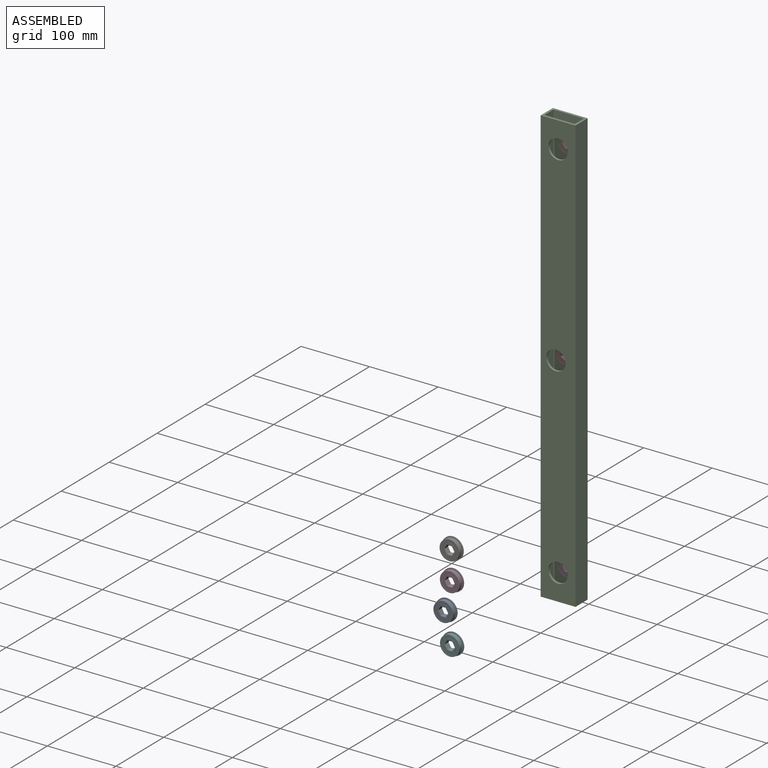
[diagram: assembled view]
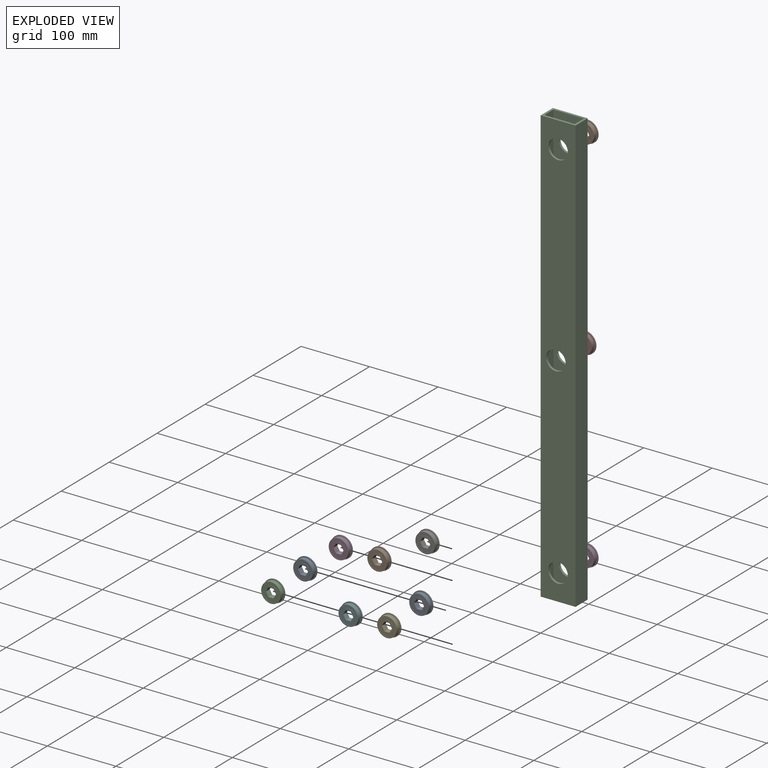
[diagram: exploded view]
GUIDED TOUR — MATED ASSEMBLY (Onshape document f9872a1371053027e5c98f9d, AutoMate assembly f9872a1371053027e5c98f9d_c135a51f051da96ee709e1ff_50b4e8c3d63217296f3e1347_default)

This assembly has 12 components, labeled P0..P11 below (a component is one placed occurrence of a part; the same part can appear more than once), held together by 6 mates. A mate is a constraint between two components; its type names the relative motion it leaves free:
  CYLINDRICAL — leaves both rotation about and translation along the listed axis free,
  PLANAR — leaves sliding in the plane through the listed point (normal = the listed direction) and rotation about that normal free.
Axis/direction vectors are unit vectors and 'through' points are millimeter coordinates, both in the assembly's world frame.

MATES
  1. PLANAR "Planar 3": P2 <-> P9, direction (0.000, 1.000, 0.000) through (-48.60, 124.48, 554.80) mm
  2. CYLINDRICAL "Cylindrical 3": P9 <-> P2, axis (0.000, -1.000, 0.000) through (-74.00, 118.13, 516.68) mm
  3. PLANAR "Planar 2": P2 <-> P3, direction (0.000, 1.000, 0.000) through (-73.93, 124.48, 237.30) mm
  4. PLANAR "Planar 1": P2 <-> P7, direction (0.000, 1.000, 0.000) through (-73.93, 124.48, 237.30) mm
  5. CYLINDRICAL "Cylindrical 1": P7 <-> P2, axis (0.000, 1.000, 0.000) through (-77.17, 120.93, 237.30) mm
  6. CYLINDRICAL "Cylindrical 2": P3 <-> P2, axis (0.000, 1.000, 0.000) through (-74.00, 118.13, -42.09) mm

ASSEMBLY ORDER
  1. P9 — the base component [order verified]
  2. P3 [order verified]
  3. P2 [order verified]
  4. P10 [order verified]
  5. P5 [order verified]
  6. P4 [order verified]
  7. P8 [order verified]
  8. P0 [order verified]
  9. P11 [order verified]
  10. P1 [order verified]
  11. P7 [order verified]
  12. P6 [order verified]
(P0, P1, P2, P4, P5, P7 verified with a relaxed clearance tolerance: the source model stores slight part interference there.)
Order-tag legend:
  [order verified] — this step's position reverses a verified removal order: the component was checked to insert without passing through the ones already placed.

Of the 12 components, 1 carries the full construction recipe — the FeatureScript program that regenerates the part's solid from scratch; the rest are supplied as boundary geometry only.
Each toured component is shown spotlighted twice — in the assembled view, then in the exploded view, where a leader line traces a displaced component back to its assembled socket (saturated green if recipe-attached, orange if geometry-only; every other component desaturated gray) — followed by its recipe or geometry summary and the mates that hold it.
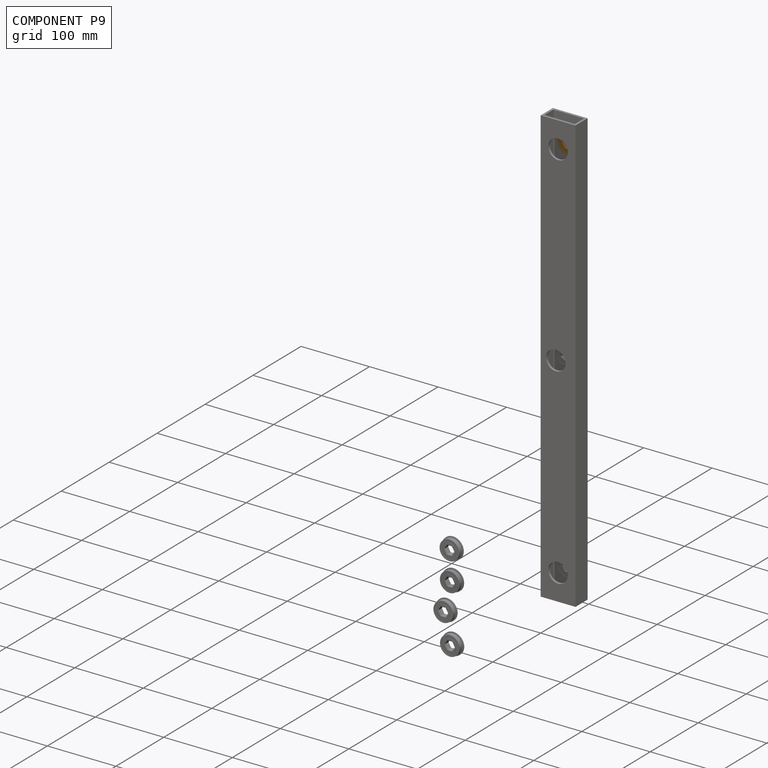
[diagram: component P9 — assembled]
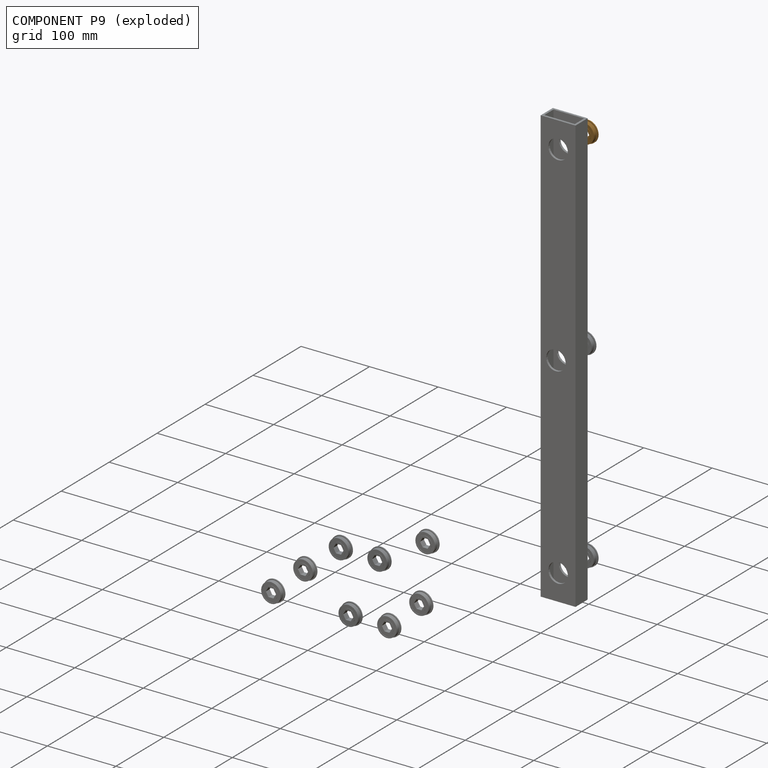
[diagram: component P9 — exploded]
COMPONENT P9 — geometry summary (no construction recipe available for this part):
  bounding box: 31.1 x 31.1 x 7.9 mm
  B-rep topology: 1 solid, 21 faces, 80 edges
  volume: 3986 mm^3 (52% of its bounding box)
  symmetry: 6-fold rotationally symmetric about the y axis; mirror-symmetric across its x mid-plane, z mid-plane
Held by: PLANAR mate "Planar 3" to P2; CYLINDRICAL mate "Cylindrical 3" to P2.
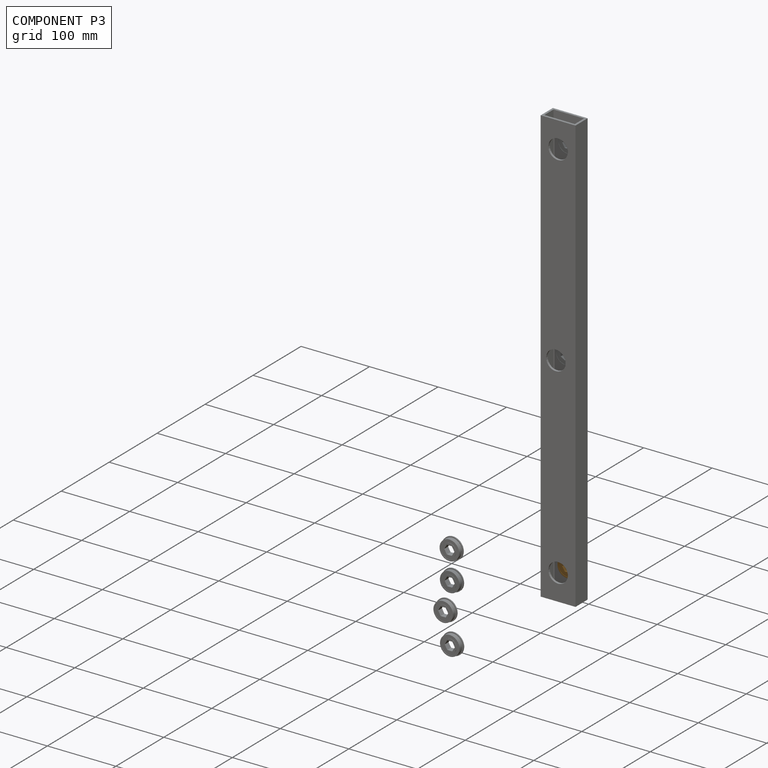
[diagram: component P3 — assembled]
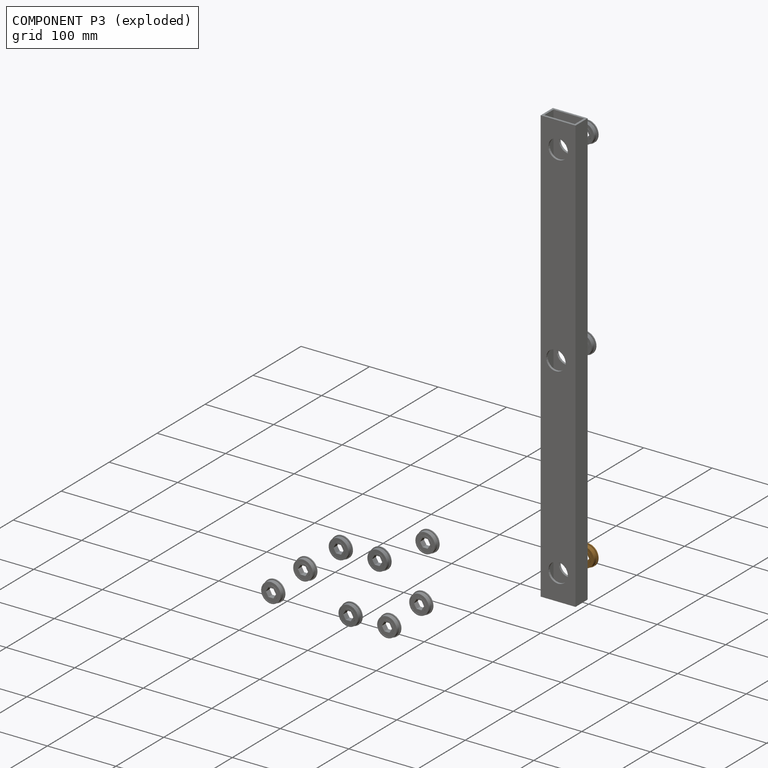
[diagram: component P3 — exploded]
COMPONENT P3 — geometry summary (no construction recipe available for this part):
  bounding box: 31.1 x 31.1 x 7.9 mm
  B-rep topology: 1 solid, 21 faces, 80 edges
  volume: 3986 mm^3 (52% of its bounding box)
  symmetry: 6-fold rotationally symmetric about the y axis; mirror-symmetric across its x mid-plane, z mid-plane
Held by: PLANAR mate "Planar 2" to P2; CYLINDRICAL mate "Cylindrical 2" to P2.
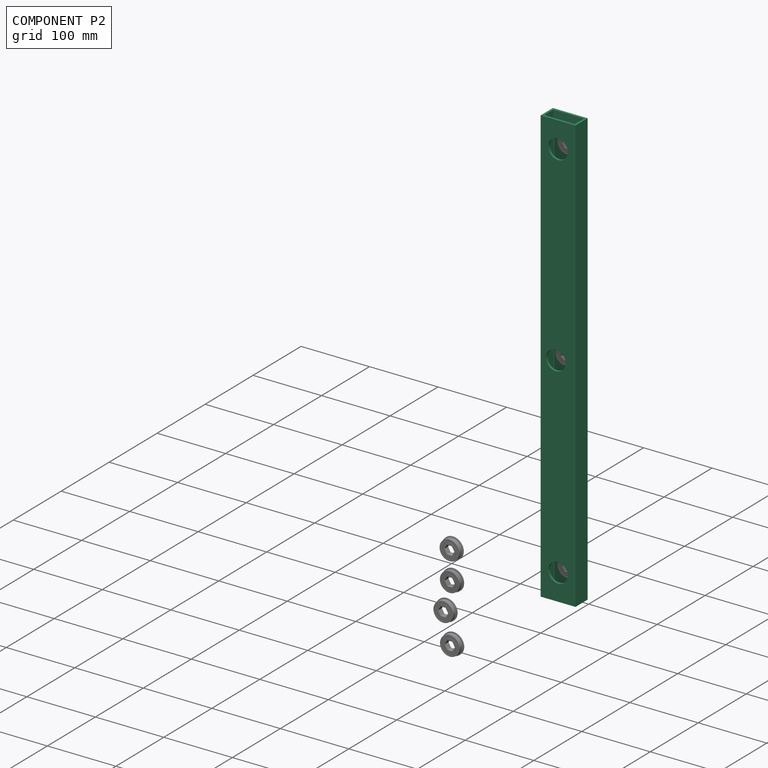
[diagram: component P2 — assembled]
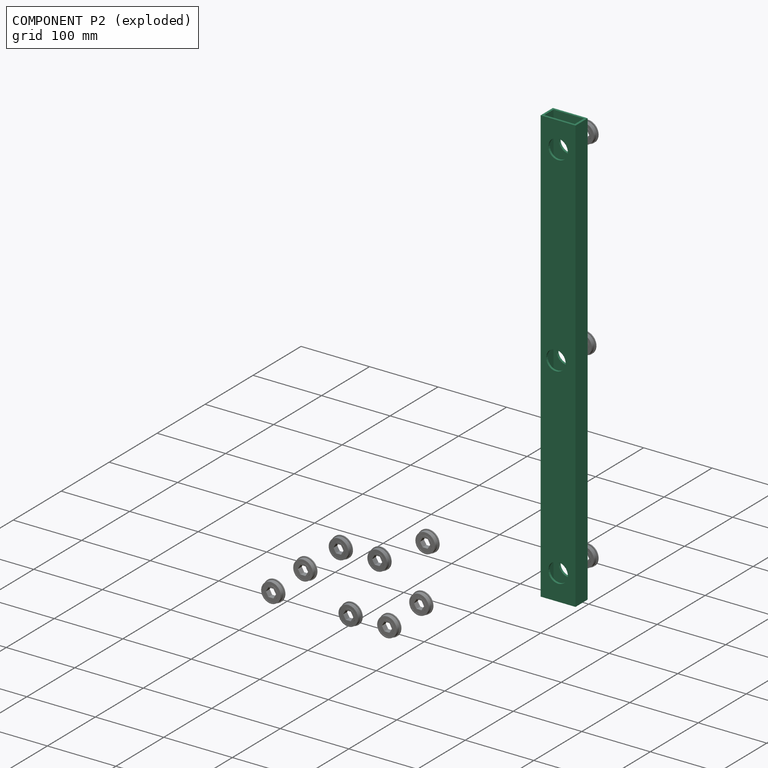
[diagram: component P2 — exploded]
COMPONENT P2 — recipe-attached (CADFS 00770569, mesh-verified: the recipe's output STEP matches this component's geometry to below the mesh-comparison resolution (tessellation chordal tolerance ~0.956 mm)).
Held by: PLANAR mate "Planar 3" to P9; CYLINDRICAL mate "Cylindrical 3" to P9; PLANAR mate "Planar 2" to P3; PLANAR mate "Planar 1" to P7; CYLINDRICAL mate "Cylindrical 1" to P7; CYLINDRICAL mate "Cylindrical 2" to P3.
Construction recipe (FeatureScript — the CAD program that rebuilds this solid; sketch coordinates are in the units given by the * unit suffixes, e.g. mm):

FeatureScript 1511;
import(path : "onshape/std/geometry.fs", version : "1511.0");
import(path : "onshape/std/common.fs", version : "1511.0");
const mm = millimeter;
const VERTEX = EntityType.VERTEX;
const EDGE = EntityType.EDGE;
const FACE = EntityType.FACE;
const BODY = EntityType.BODY;
function v(x, y){return vector(x, y);}
function OD(order){return orderDisambiguation(order);}
function OSD(set){return originalSetDisambiguation(set);}
function TD(topology){return topologyDisambiguation(topology);}
function TDD(query){return trueDependencyDisambiguation(query);}
function sQuery(a, b, c) {return sketchEntityQuery(a, b, c);}

annotation { "Feature Type Name" : "Feature", "Feature Type Description" : "" }
export const myFeature = defineFeature(function(context is Context, id is Id, definition is map)
    precondition{}
    {
        {
            var Q0;
            Q0=qCreatedBy(makeId("Top.planeOp"),FACE);
            var sketch = newSketch(context, id + "F0", { "sketchPlane" : qUnion([Q0])});
            skLineSegment(sketch, "E0", {"start": v(0, 0) * mm, "end": v(0, 25.4) * mm});
            skLineSegment(sketch, "E1", {"start": v(0, 25.4) * mm, "end": v(50.8, 25.4) * mm});
            skLineSegment(sketch, "E2", {"start": v(50.8, 25.4) * mm, "end": v(50.8, 0) * mm});
            skLineSegment(sketch, "E3", {"start": v(50.8, 0) * mm, "end": v(0, 0) * mm});
            skLineSegment(sketch, "E4.bottom", {"start": v(3.18, 22.22) * mm, "end": v(47.62, 22.23) * mm});
            skLineSegment(sketch, "E4.top", {"start": v(3.17, 3.17) * mm, "end": v(47.62, 3.18) * mm});
            skLineSegment(sketch, "E4.left", {"start": v(3.17, 22.23) * mm, "end": v(3.17, 3.17) * mm});
            skLineSegment(sketch, "E4.right", {"start": v(47.62, 22.23) * mm, "end": v(47.62, 3.17) * mm});
            skPoint(sketch, "E4.middle", {"position": v(25.4, 12.7) * mm});
            skLineSegment(sketch, "E5", {"start": v(25.4, 25.4) * mm, "end": v(25.4, 22.23) * mm, "construction": true});
            skLineSegment(sketch, "E6", {"start": v(0, 12.7) * mm, "end": v(3.17, 12.7) * mm, "construction": true});
            skPoint(sketch, "E6.endSnap0", {"position": v(3.17, 12.7) * mm});
            skSolve(sketch);
        }
        {
            var Q0;
            Q0 = qSketchRegion(id + "F0", true);
            extrude(context, id + "F1", {"entities" : qUnion([Q0]), "depth" : 635 * mm, "offsetDistance" : 25.4 * mm});
        }
        {
            var Q0;
            Q0=makeQuery(id+"F1.opExtrude","SWEPT_FACE",FACE,{"disambiguationData":[OSD([sQuery(id+"F0.wireOp",EDGE,"E1")])]});
            var sketch = newSketch(context, id + "F2", { "sketchPlane" : qUnion([Q0])});
            skLineSegment(sketch, "E7", {"start": v(-25.4, 38.12) * mm, "end": v(-22.23, 317.5) * mm, "construction": true});
            skLineSegment(sketch, "E8", {"start": v(-22.23, 317.5) * mm, "end": v(-25.4, 596.88) * mm, "construction": true});
            skLineSegment(sketch, "E9", {"start": v(-25.4, 596.88) * mm, "end": v(-25.4, 38.12) * mm, "construction": true});
            skLineSegment(sketch, "E10", {"start": v(-25.4, 317.5) * mm, "end": v(-50.8, 317.5) * mm, "construction": true});
            skCircle(sketch, "E11", {"center": v(-25.4, 596.88) * mm, "radius": 14.29 * mm});
            skCircle(sketch, "E12", {"center": v(-22.23, 317.5) * mm, "radius": 14.29 * mm});
            skCircle(sketch, "E13", {"center": v(-25.4, 38.12) * mm, "radius": 14.29 * mm});
            skSolve(sketch);
        }
        {
            var Q0;
            Q0 = qSketchRegion(id + "F2", true);
            extrude(context, id + "F3", {"entities" : qUnion([Q0]), "operationType" : NewBodyOperationType.REMOVE, "endBound" : BoundingType.THROUGH_ALL, "oppositeDirection" : true, "depth" : 25.4 * mm, "offsetDistance" : 25.4 * mm});
        }
    });
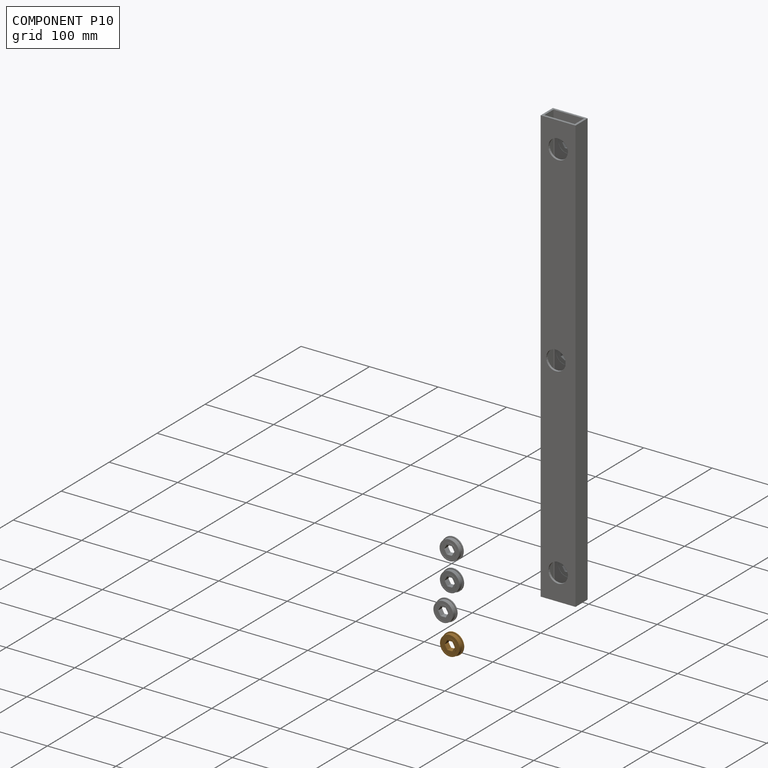
[diagram: component P10 — assembled]
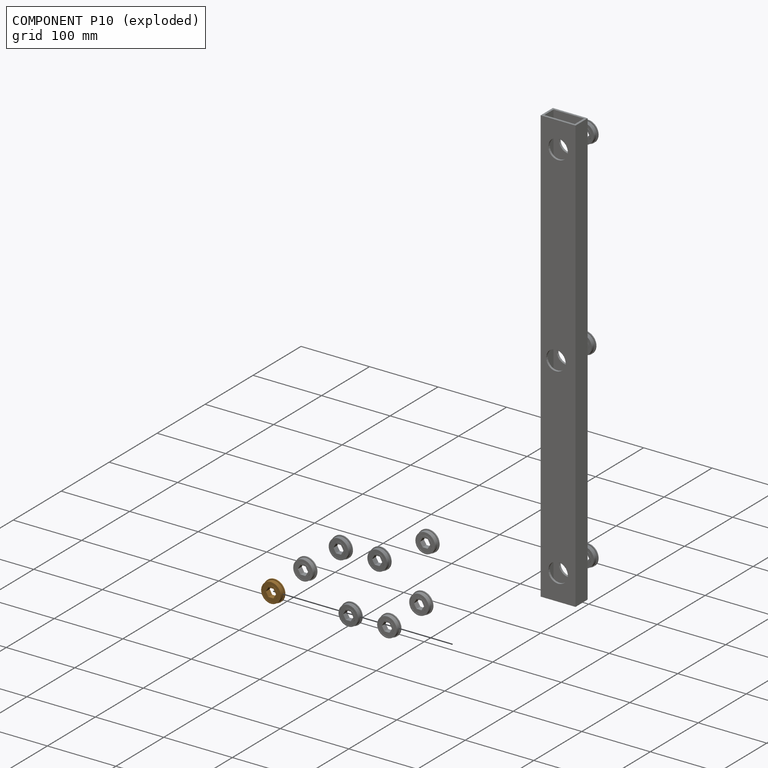
[diagram: component P10 — exploded]
COMPONENT P10 — geometry summary (no construction recipe available for this part):
  bounding box: 31.1 x 31.1 x 7.9 mm
  B-rep topology: 1 solid, 21 faces, 80 edges
  volume: 3986 mm^3 (52% of its bounding box)
  symmetry: 6-fold rotationally symmetric about the y axis; mirror-symmetric across its x mid-plane, z mid-plane
Held by: no mates (free).
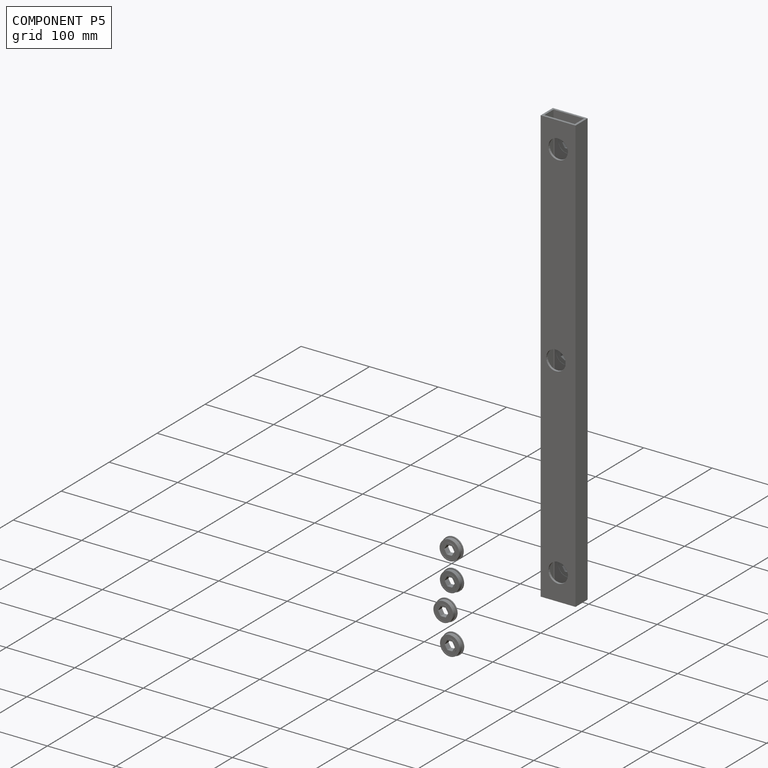
[diagram: component P5 — assembled]
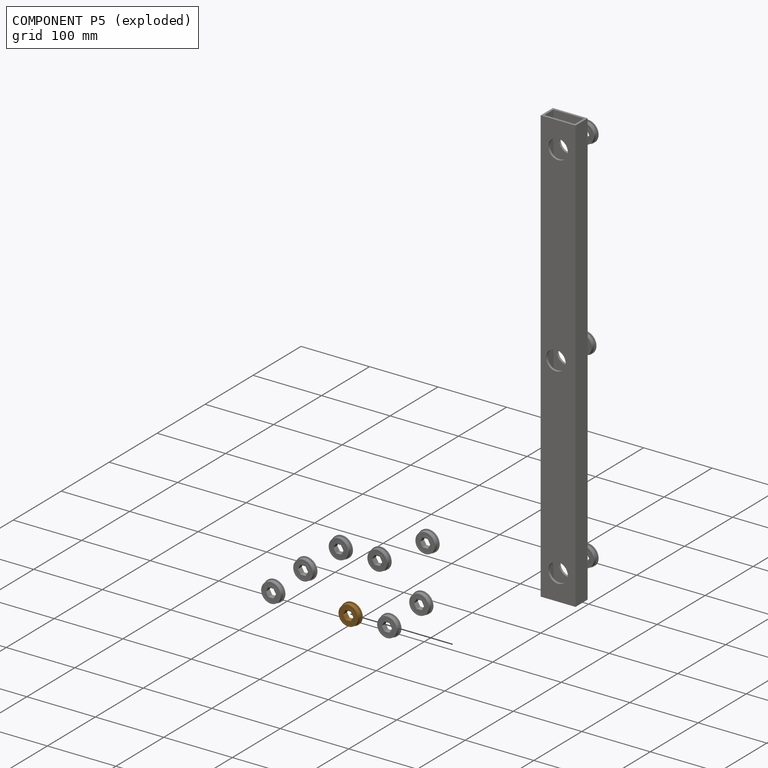
[diagram: component P5 — exploded]
COMPONENT P5 — geometry summary (no construction recipe available for this part):
  bounding box: 31.1 x 31.1 x 7.9 mm
  B-rep topology: 1 solid, 21 faces, 80 edges
  volume: 3986 mm^3 (52% of its bounding box)
  symmetry: 6-fold rotationally symmetric about the y axis; mirror-symmetric across its x mid-plane, z mid-plane
Held by: no mates (free).
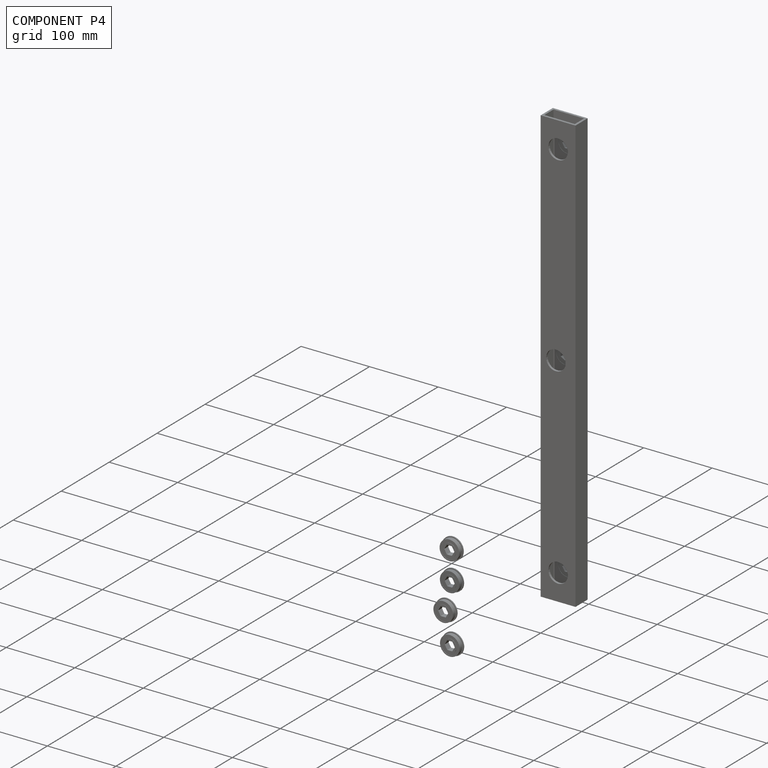
[diagram: component P4 — assembled]
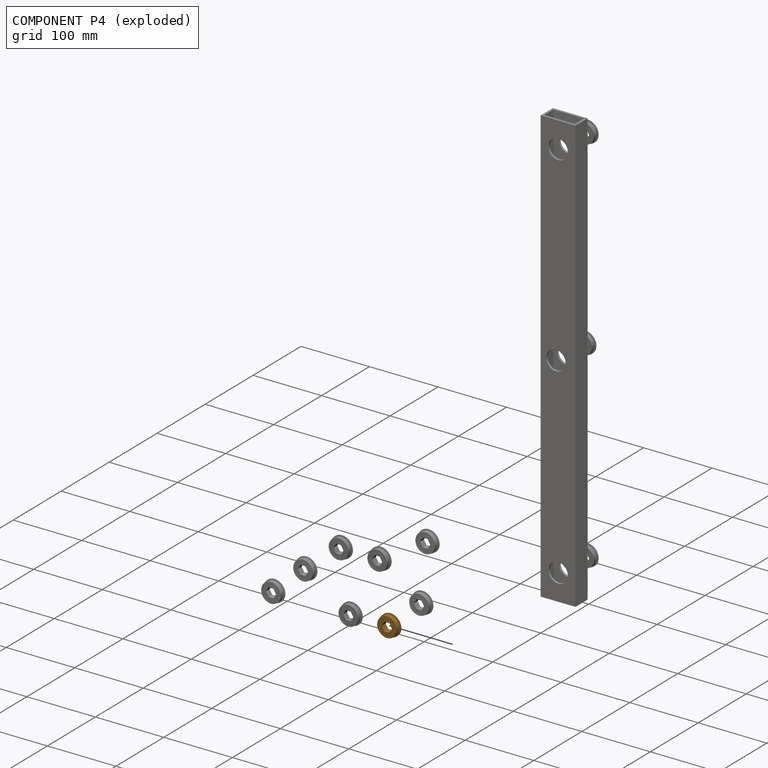
[diagram: component P4 — exploded]
COMPONENT P4 — geometry summary (no construction recipe available for this part):
  bounding box: 31.1 x 31.1 x 7.9 mm
  B-rep topology: 1 solid, 21 faces, 80 edges
  volume: 3986 mm^3 (52% of its bounding box)
  symmetry: 6-fold rotationally symmetric about the y axis; mirror-symmetric across its x mid-plane, z mid-plane
Held by: no mates (free).
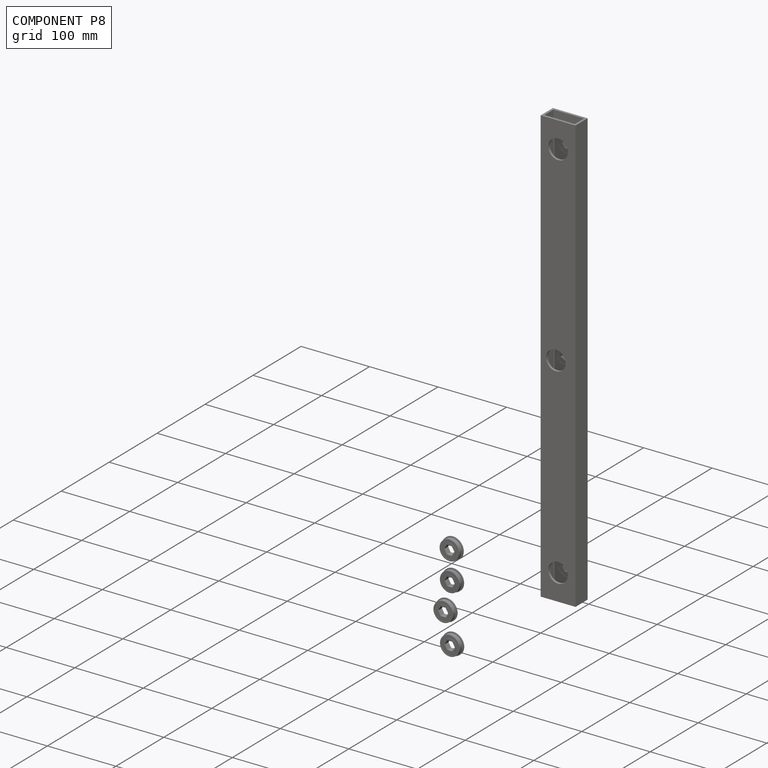
[diagram: component P8 — assembled]
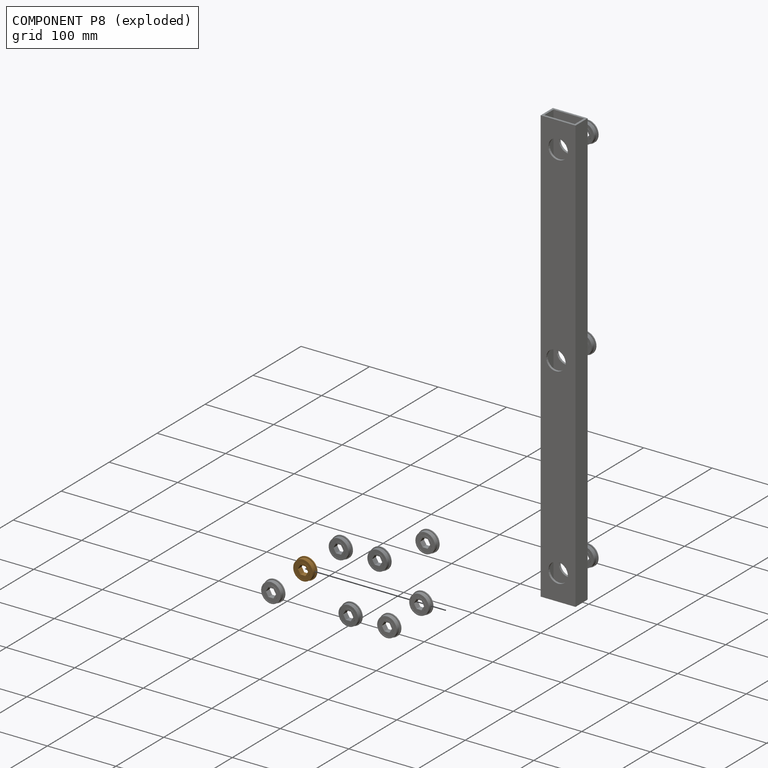
[diagram: component P8 — exploded]
COMPONENT P8 — geometry summary (no construction recipe available for this part):
  bounding box: 31.1 x 31.1 x 7.9 mm
  B-rep topology: 1 solid, 21 faces, 80 edges
  volume: 3986 mm^3 (52% of its bounding box)
  symmetry: 6-fold rotationally symmetric about the y axis; mirror-symmetric across its x mid-plane, z mid-plane
Held by: no mates (free).
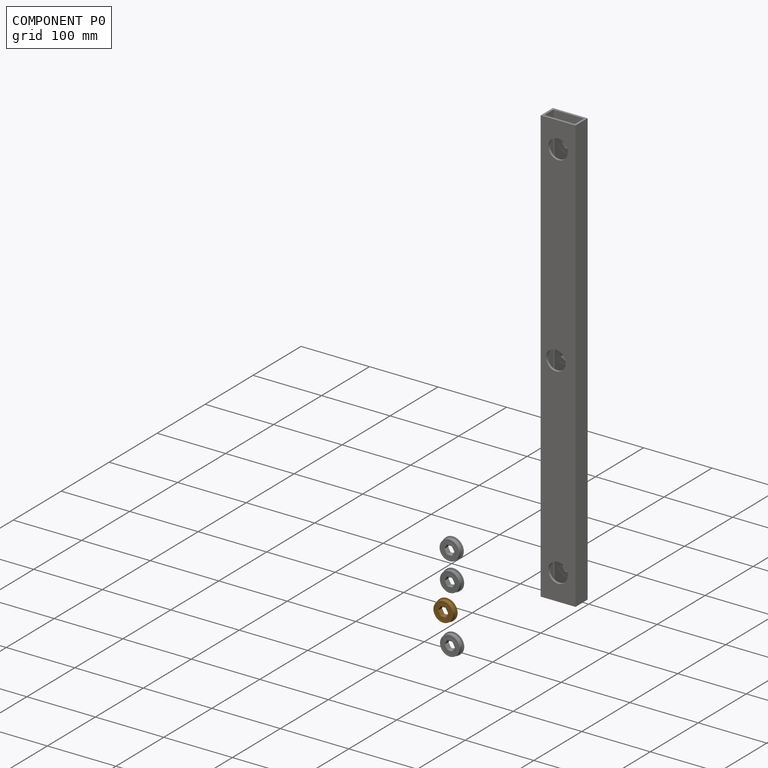
[diagram: component P0 — assembled]
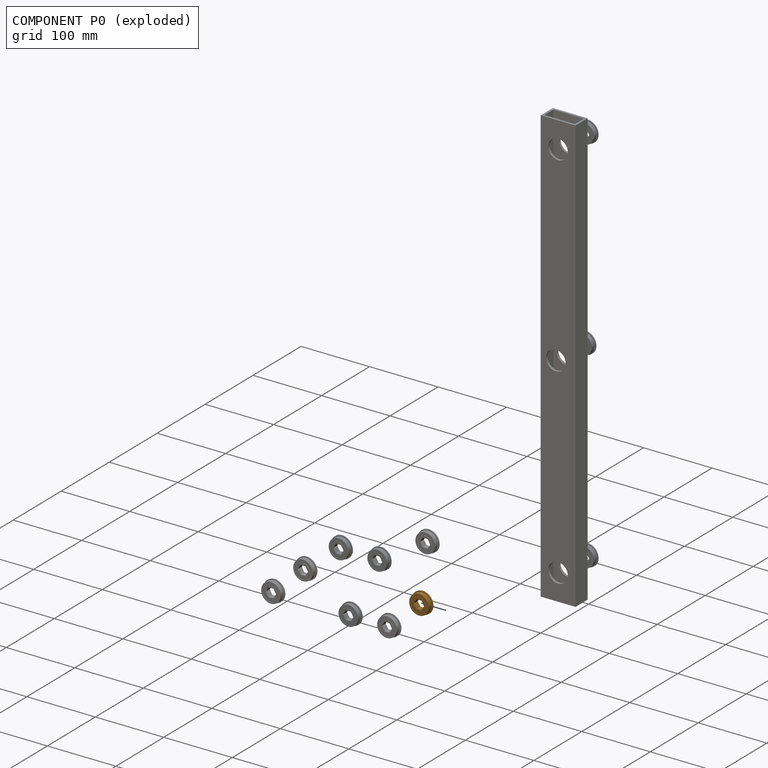
[diagram: component P0 — exploded]
COMPONENT P0 — geometry summary (no construction recipe available for this part):
  bounding box: 31.1 x 31.1 x 7.9 mm
  B-rep topology: 1 solid, 21 faces, 80 edges
  volume: 3986 mm^3 (52% of its bounding box)
  symmetry: 6-fold rotationally symmetric about the y axis; mirror-symmetric across its x mid-plane, z mid-plane
Held by: no mates (free).
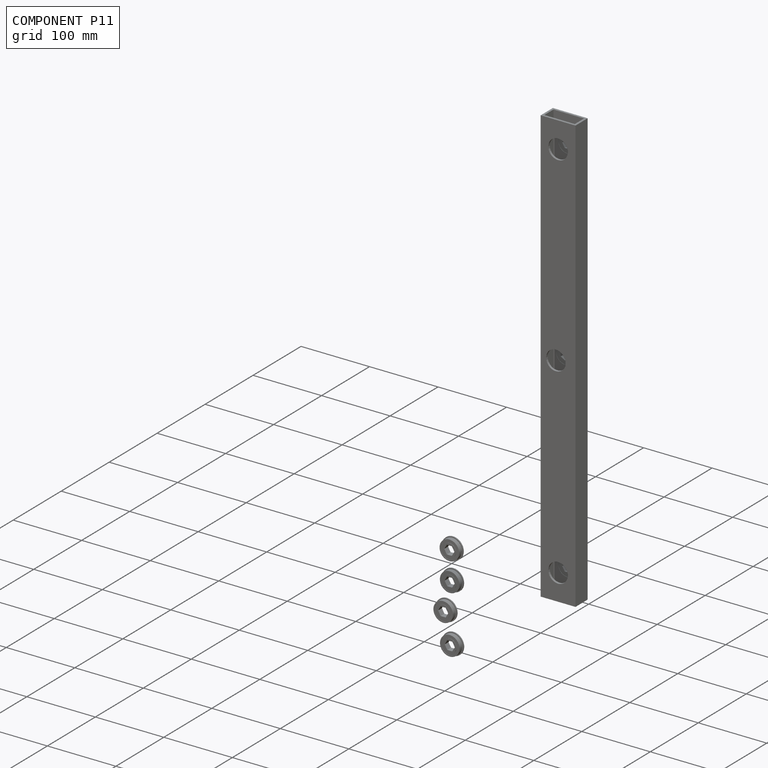
[diagram: component P11 — assembled]
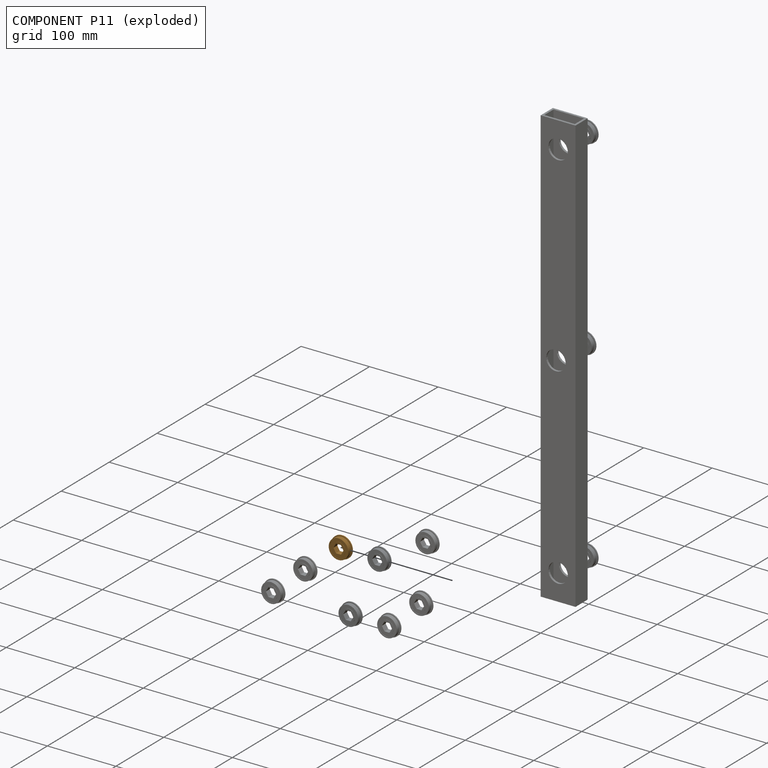
[diagram: component P11 — exploded]
COMPONENT P11 — geometry summary (no construction recipe available for this part):
  bounding box: 31.1 x 31.1 x 7.9 mm
  B-rep topology: 1 solid, 21 faces, 80 edges
  volume: 3986 mm^3 (52% of its bounding box)
  symmetry: 6-fold rotationally symmetric about the y axis; mirror-symmetric across its x mid-plane, z mid-plane
Held by: no mates (free).
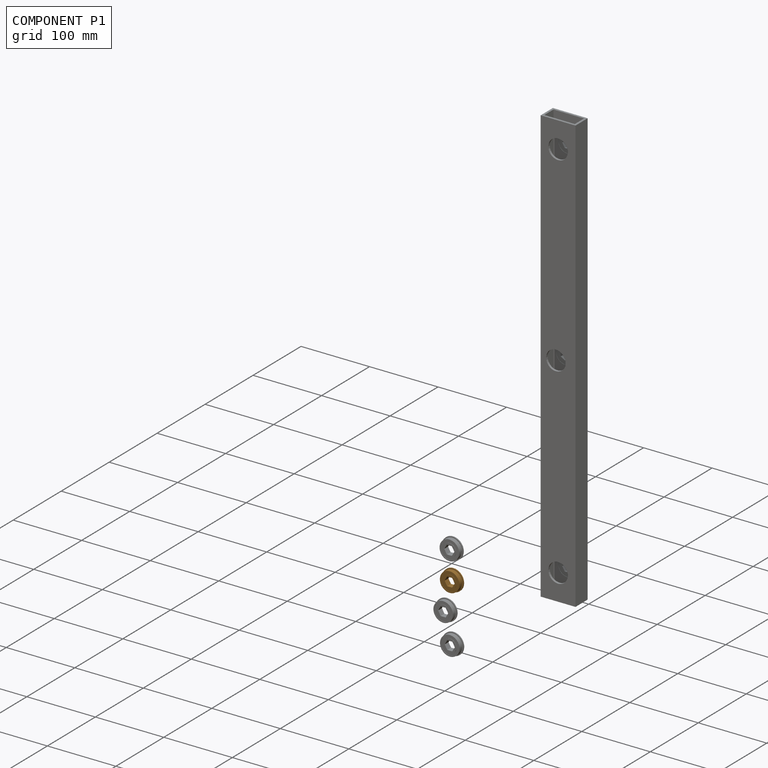
[diagram: component P1 — assembled]
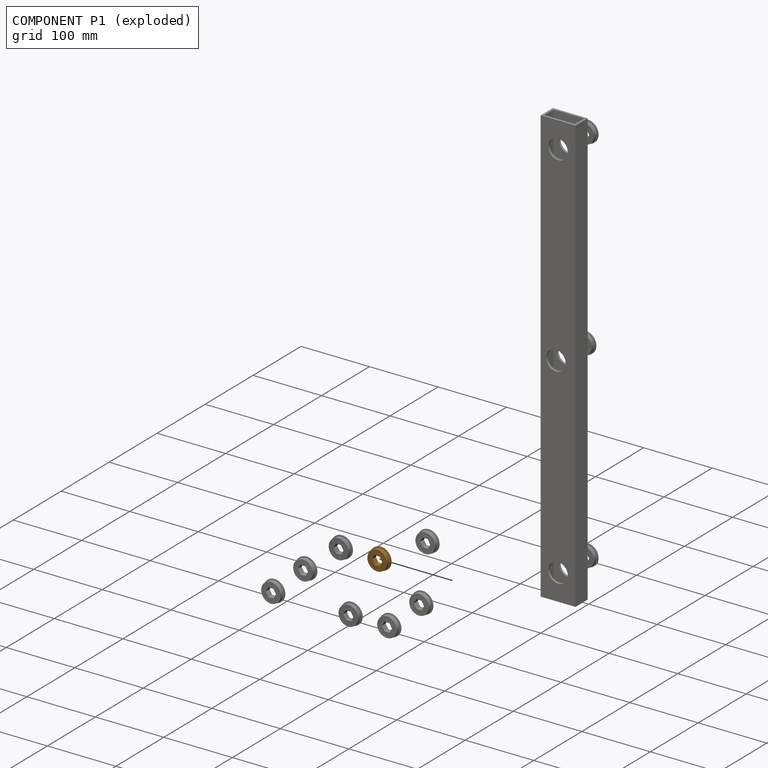
[diagram: component P1 — exploded]
COMPONENT P1 — geometry summary (no construction recipe available for this part):
  bounding box: 31.1 x 31.1 x 7.9 mm
  B-rep topology: 1 solid, 21 faces, 80 edges
  volume: 3986 mm^3 (52% of its bounding box)
  symmetry: 6-fold rotationally symmetric about the y axis; mirror-symmetric across its x mid-plane, z mid-plane
Held by: no mates (free).
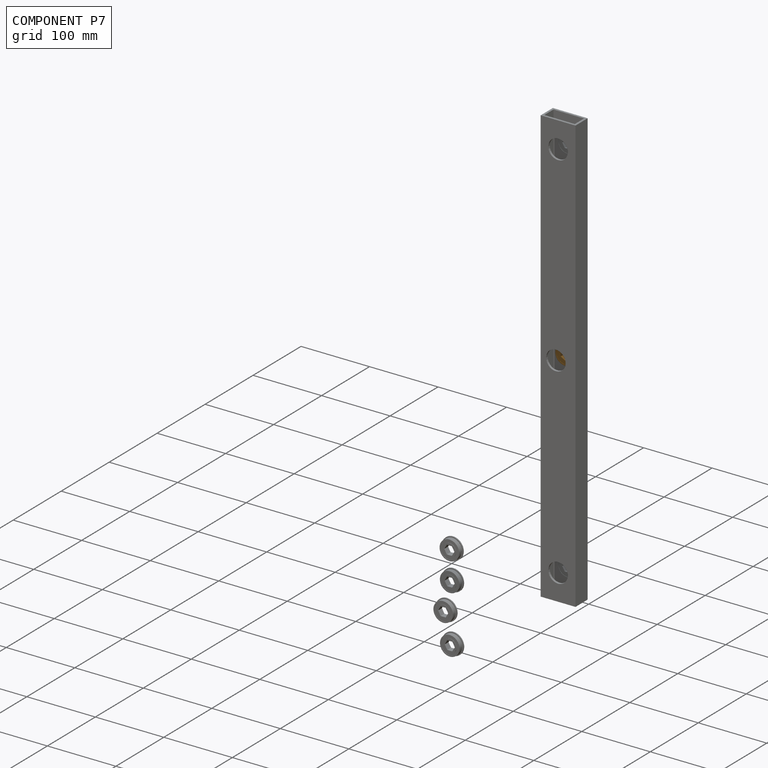
[diagram: component P7 — assembled]
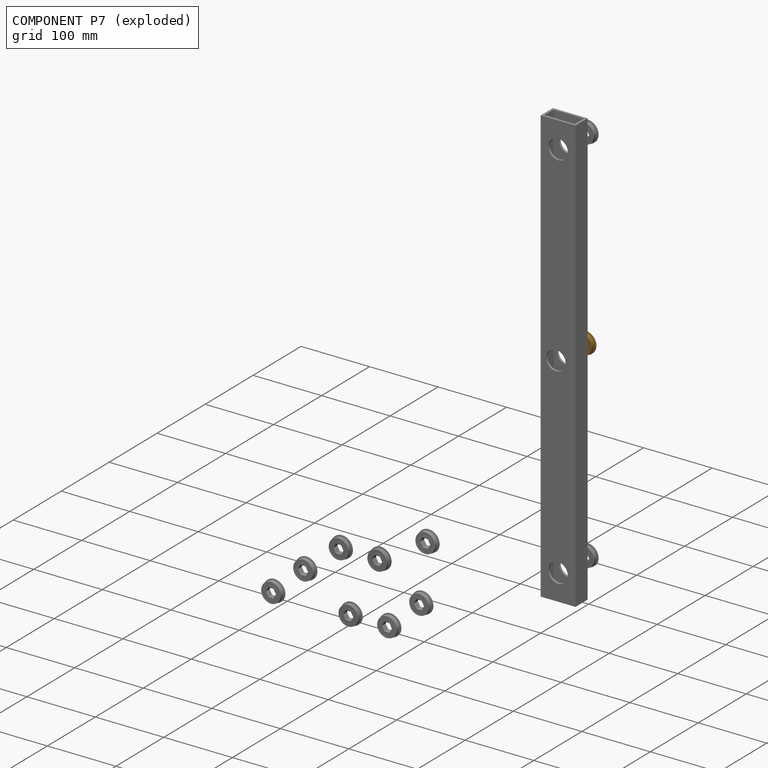
[diagram: component P7 — exploded]
COMPONENT P7 — geometry summary (no construction recipe available for this part):
  bounding box: 31.1 x 31.1 x 7.9 mm
  B-rep topology: 1 solid, 21 faces, 80 edges
  volume: 3986 mm^3 (52% of its bounding box)
  symmetry: 6-fold rotationally symmetric about the y axis; mirror-symmetric across its x mid-plane, z mid-plane
Held by: PLANAR mate "Planar 1" to P2; CYLINDRICAL mate "Cylindrical 1" to P2.
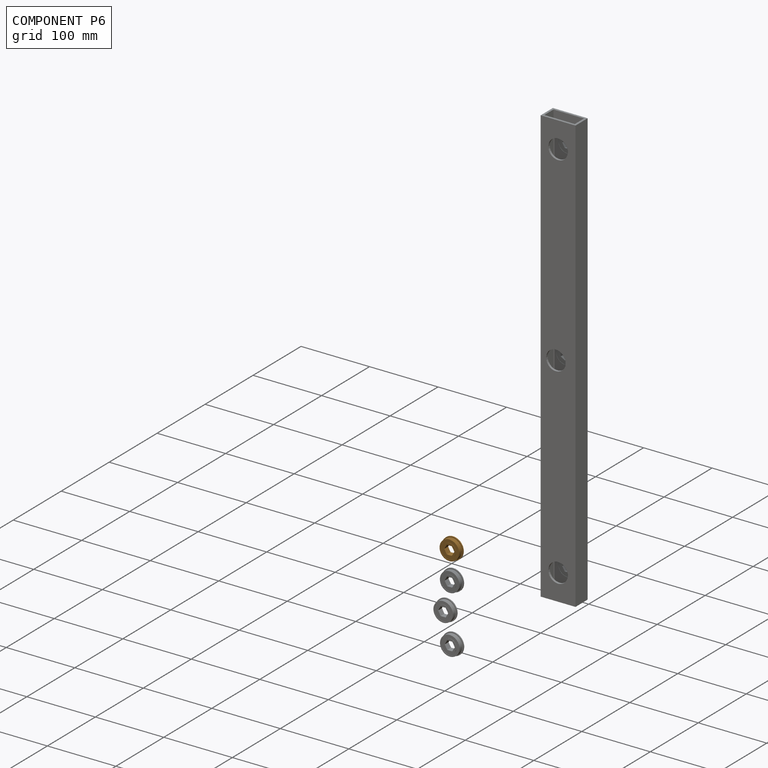
[diagram: component P6 — assembled]
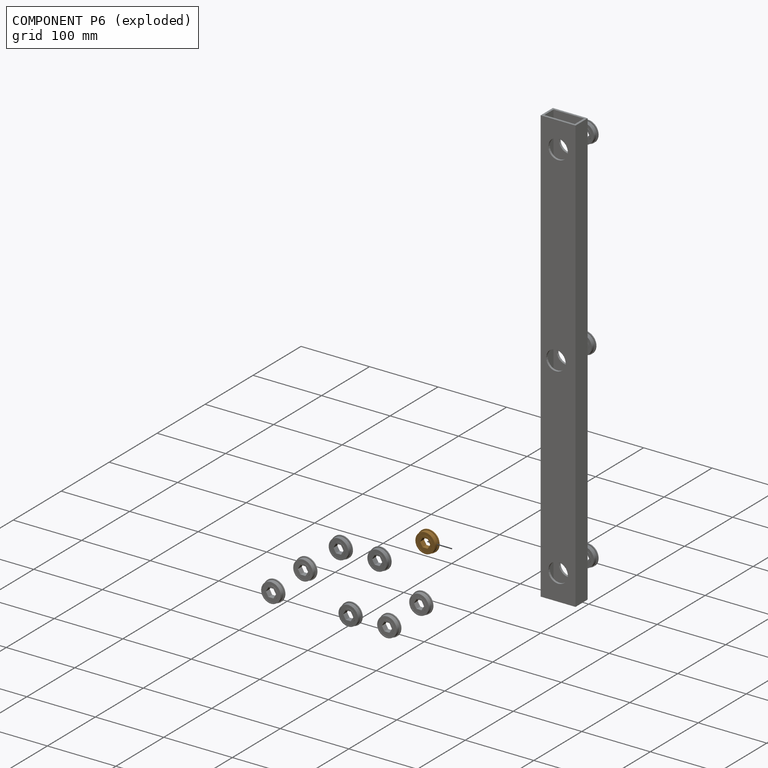
[diagram: component P6 — exploded]
COMPONENT P6 — geometry summary (no construction recipe available for this part):
  bounding box: 31.1 x 31.1 x 7.9 mm
  B-rep topology: 1 solid, 21 faces, 80 edges
  volume: 3986 mm^3 (52% of its bounding box)
  symmetry: 6-fold rotationally symmetric about the y axis; mirror-symmetric across its x mid-plane, z mid-plane
Held by: no mates (free).
PROVENANCE & LICENSES
Assembly (occurrences, transforms, mates, per-part STEP geometry): AutoMate dataset, Zenodo record 7776208, CC0.
Construction recipes: CADFS (HuggingFace VladPyatov/CADFS, CC-BY-4.0, layered over the ABC dataset), FeatureScript reconstruction programs keyed by ABC model id.
Join: ABC meta listings map ABC model id -> Onshape documentId; within a shared document, parts are matched by geometric signature (bounding-box dims + volume at 0.1% relative tolerance, exact B-rep face/solid counts).
Verification: 1 of this assembly's 12 components carries a recipe attachment, and every attachment is mesh-verified: the CADFS STEP and the AutoMate member STEP were compared as meshes in their shared local frame (symmetric sampled-point-to-mesh distance); worst across the 1 attachment: below the mesh-comparison resolution (tessellation chordal tolerance ~0.956 mm) on a 638 mm part.
Renders: orthographic iso camera (az 35 / el 25); the floor grid conveys scale (grid pitch printed in each image; no ruler). In the exploded view each component is displaced by its stored offset vector: the offsets alone carry the explosion direction (mate normal/axis signs are not orientation cues and do not encode it), and separation distances are assigned per mate-chain, not proportionally to assembly-order depth.
